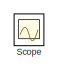
[diagram: root canvas - part 1/2, top left region]
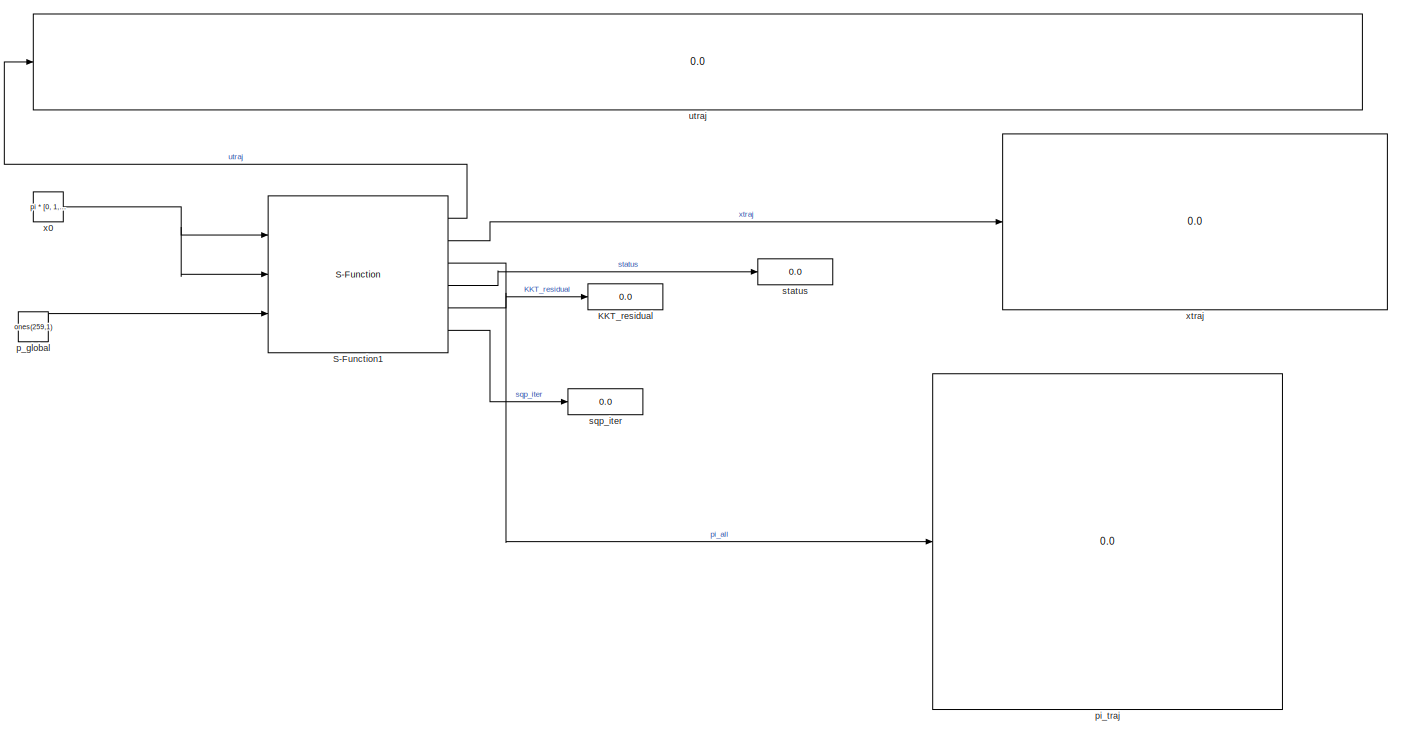
[diagram: root canvas - part 2/2, most of the canvas]
MODEL slx_756bb1e1ee86
KIND model
CONFIG AbsTol = auto
CONFIG EnableMultiTasking = off
CONFIG FixedStep = auto
CONFIG MaxStep = auto
CONFIG MinStep = auto
CONFIG RelTol = 1e-3
CONFIG SampleTimeConstraint = Unconstrained
CONFIG Solver = ode45
CONFIG SolverName = ode45
CONFIG StartTime = 0.0
CONFIG StopTime = 0.1
BLOCK [Display] KKT_residual
  Decimation = 1
  Ports = [1]
BLOCK [S-Function] S-Function1
  EnableBusSupport = off
  FunctionName = acados_solver_sfunction_sl_blz_true_pglbl_true_lut_true
  Ports = [3, 6]
  SFcnIsStateOwnerBlock = off
  SFunctionDeploymentMode = off
BLOCK [Scope] Scope
  Floating = off
  IOType = viewer
  NumInputPorts = 1
  Ports = []
  ScopeSpecificationString = Simulink.scopes.TimeScopeBlockCfg('CurrentConfiguration', extmgr.ConfigurationSet(extmgr.Configuration('Core','General UI',true,'FigureColor',[0.156862745098039 0.156862745098039 0.156862745098039]),extmgr.Configuration('Core','Source UI',true),extmgr.Configuration('Sources','WiredSimulink',true,'DataLoggingVariableName','ScopeData1','DataLoggingSaveFormat','StructureWithTime','DataLoggingDecimati...<+2754ch>
BLOCK [Constant] p_global
  Value = ones(259,1)
BLOCK [Display] pi_traj
  Decimation = 1
  Ports = [1]
BLOCK [Display] sqp_iter
  Decimation = 1
  Ports = [1]
BLOCK [Display] status
  Decimation = 1
  Ports = [1]
BLOCK [Display] utraj
  Decimation = 1
  Ports = [1]
BLOCK [Constant] x0
  Value = pi * [0, 1, 0, 0];
BLOCK [Display] xtraj
  Decimation = 1
  Ports = [1]
LINE S-Function1:1 -> utraj:1
LINE S-Function1:2 -> xtraj:1
LINE S-Function1:3 -> pi_traj:1
LINE S-Function1:4 -> status:1
LINE S-Function1:5 -> KKT_residual:1
LINE S-Function1:6 -> sqp_iter:1
LINE p_global:1 -> S-Function1:3
NET x0:1 -> S-Function1:1, S-Function1:2
note: NET lines group one-source signal fan-out (src -> all destinations, sorted); 1:1 wires keep LINE
